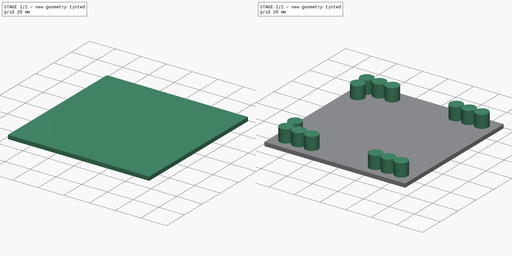
[diagram: build sequence overview — one tinted view per stage of 2, left to right]
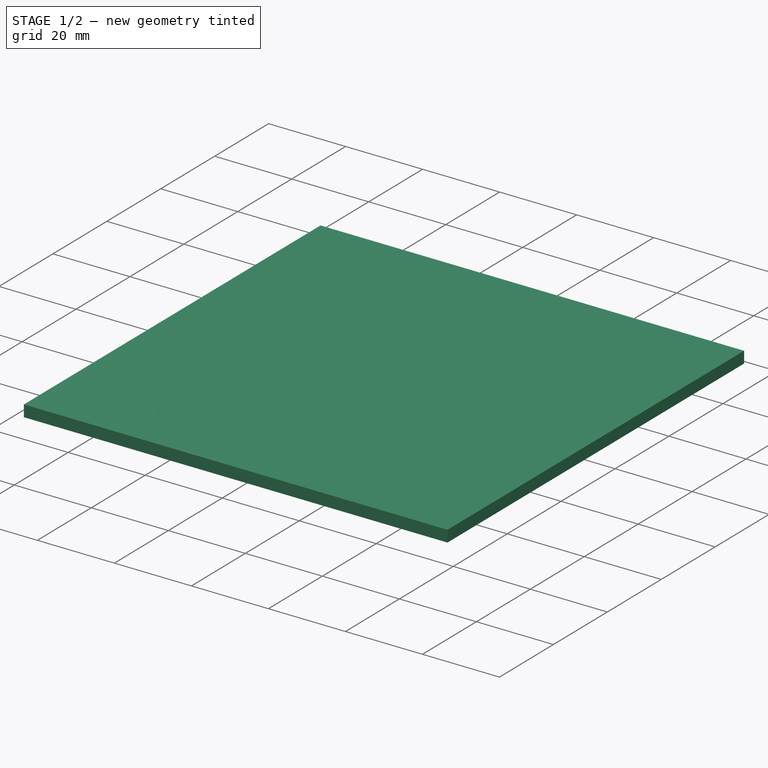
[diagram: stage 1 of 2 — iso view after this stage's code; geometry added in this stage tinted green]
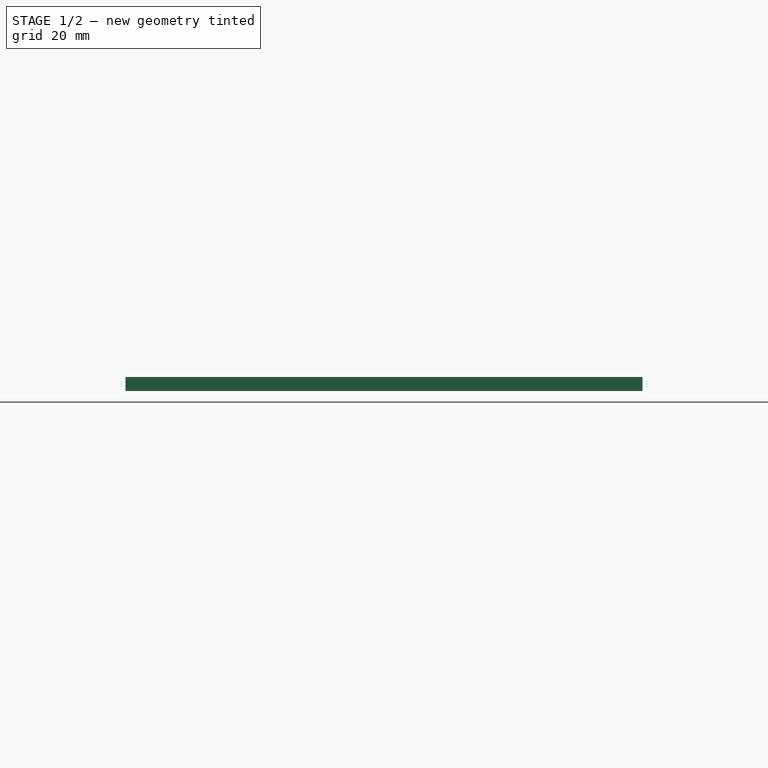
[diagram: stage 1 of 2 — front view after this stage's code; geometry added in this stage tinted green]
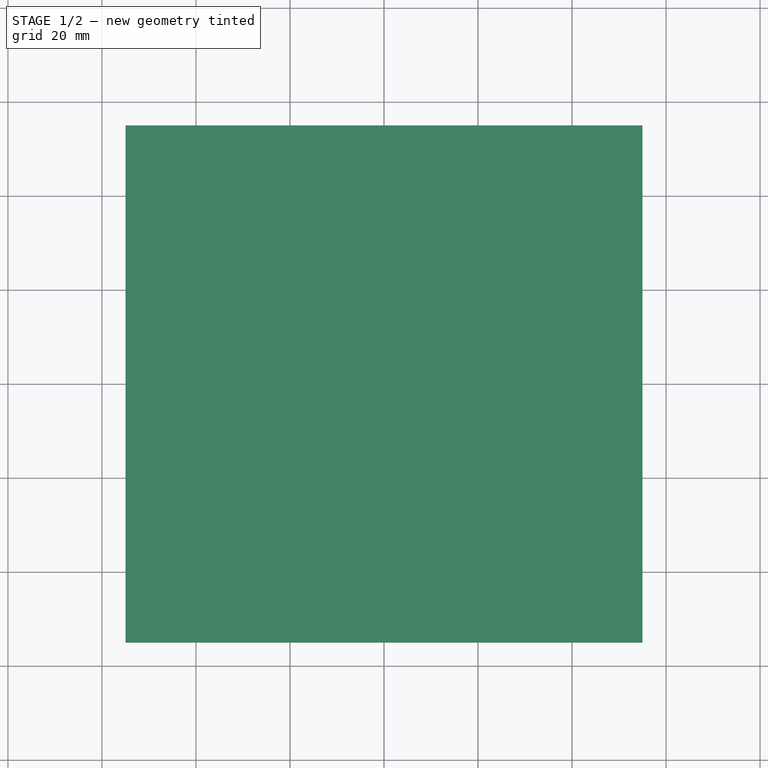
[diagram: stage 1 of 2 — top view after this stage's code; geometry added in this stage tinted green]
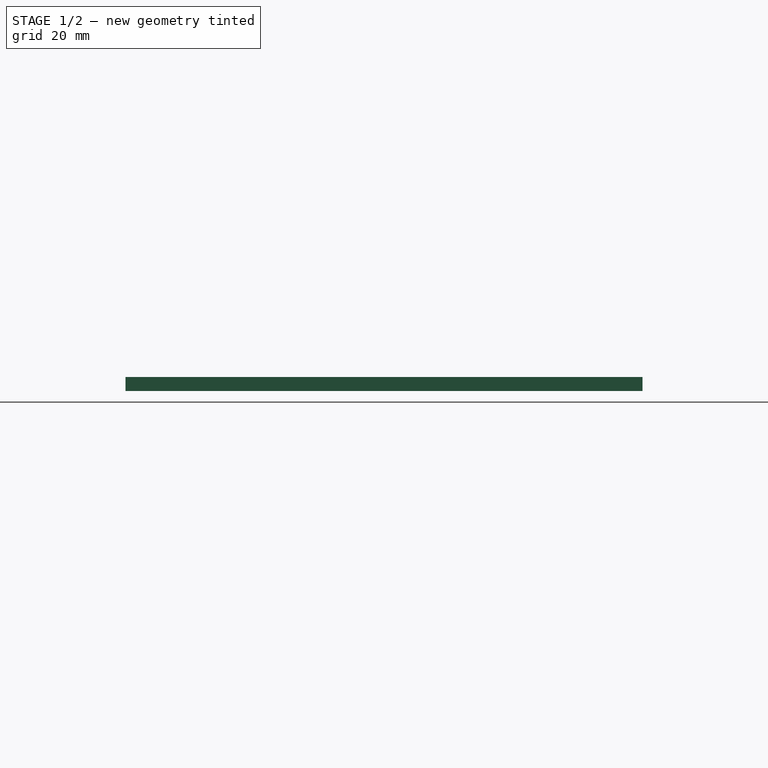
[diagram: stage 1 of 2 — right view after this stage's code; geometry added in this stage tinted green]
FCSTD DOCUMENT  (FreeCAD 1.0R39104 (Git))
Label: Case_1
License: All rights reserved
LicenseURL: https://en.wikipedia.org/wiki/All_rights_reserved
objects: Sketcher::SketchObject×3, PartDesign::Pad×2, PartDesign::Body×1
note: 13 computed .brp shape members not serialized (recipe doc carries the construction recipe); baked Part::Feature solids carry a one-line shape summary decoded from their .brp

FEATURE [Sketcher::SketchObject] Sketch
  ArcFitTolerance = 1e-06
  AttachmentSupport = -> [XY_Plane]
  FullyConstrained = true
  MakeInternals = false
  MapMode = 5
  sketch-geometry (5):
    g0: LineSegment StartX=-55 StartY=55 StartZ=0 EndX=-55 EndY=-55 EndZ=0
    g1: LineSegment StartX=-55 StartY=-55 StartZ=0 EndX=55 EndY=-55 EndZ=0
    g2: LineSegment StartX=55 StartY=-55 StartZ=0 EndX=55 EndY=55 EndZ=0
    g3: LineSegment StartX=55 StartY=55 StartZ=0 EndX=-55 EndY=55 EndZ=0
    g4: GeomPoint [constr] X=0 Y=0 Z=0
  constraints (12):
    c: Coincident(g0,g1)
    c: Coincident(g1,g2)
    c: Coincident(g2,g3)
    c: Coincident(g3,g0)
    c: Vertical(g0)
    c: Vertical(g2)
    c: Horizontal(g1)
    c: Horizontal(g3)
    c: Symmetric(g2,g0,g4)
    c: Coincident(g4,g-1)
    c: DistanceX(g3,g3) = 110
    c: DistanceY(g0,g0) = 110
FEATURE [PartDesign::Pad] Pad
  Direction = (0,0,1)
  Length = 3
  Length2 = 10
  Profile = -> Sketch
  ReferenceAxis = -> Sketch [N_Axis]
  Refine = true
  Suppressed = false
  Type = 0
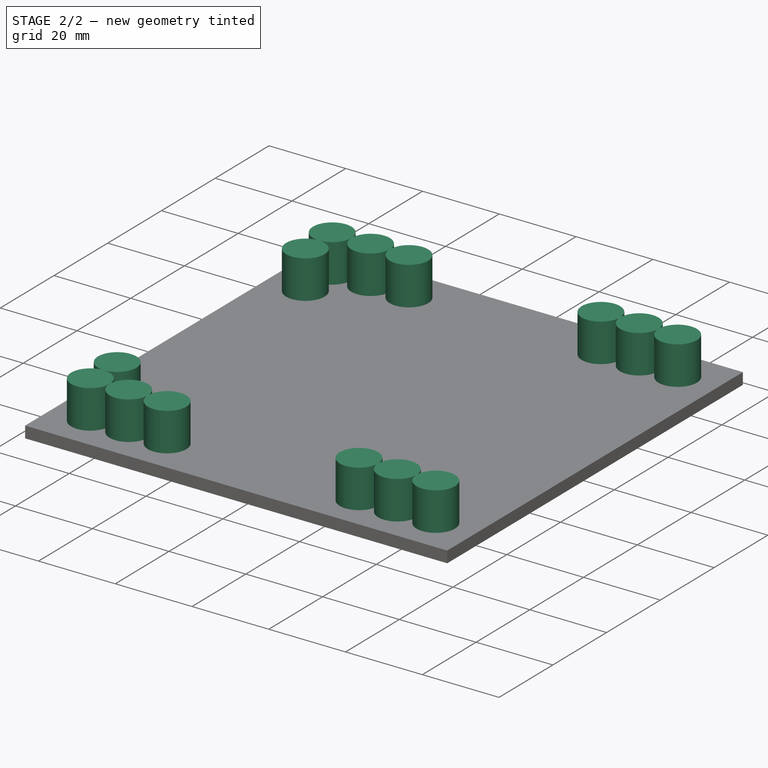
[diagram: stage 2 of 2 — iso view after this stage's code; geometry added in this stage tinted green]
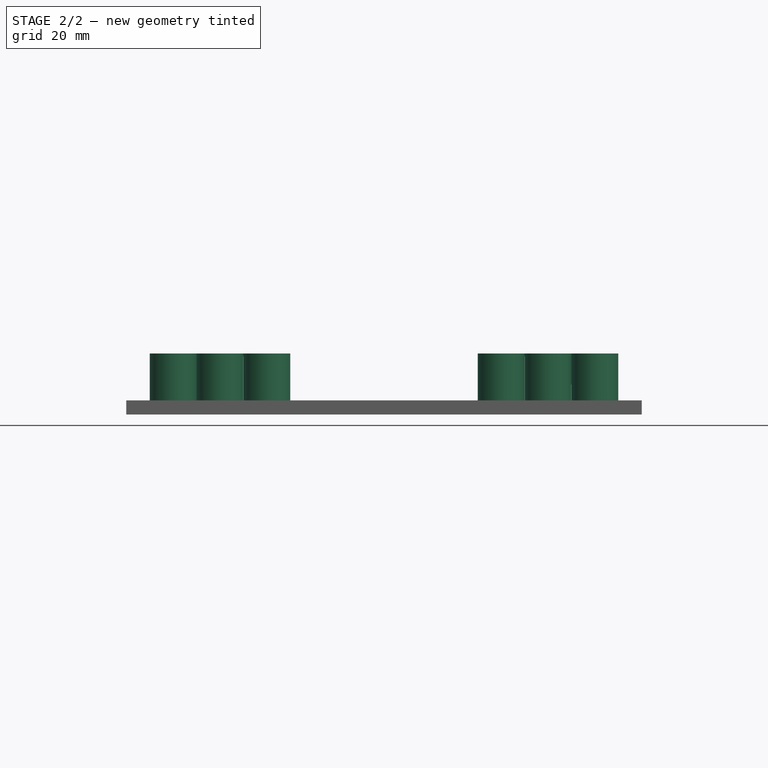
[diagram: stage 2 of 2 — front view after this stage's code; geometry added in this stage tinted green]
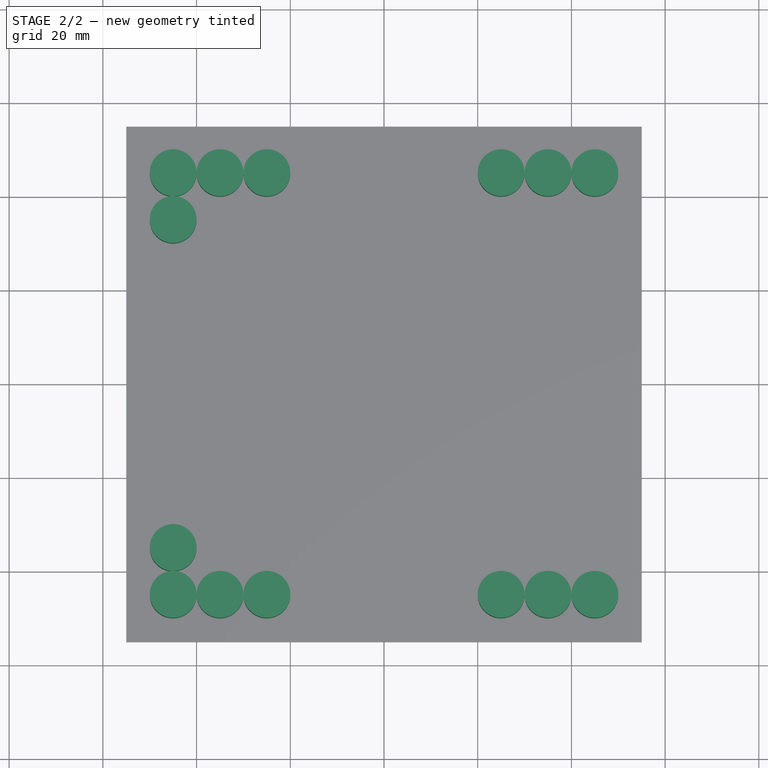
[diagram: stage 2 of 2 — top view after this stage's code; geometry added in this stage tinted green]
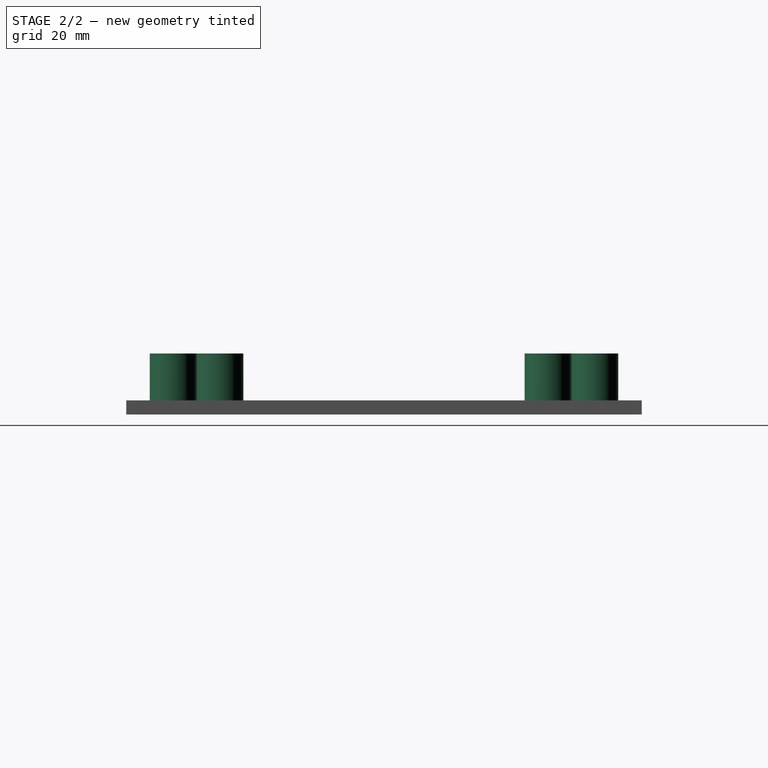
[diagram: stage 2 of 2 — right view after this stage's code; geometry added in this stage tinted green]
FEATURE [Sketcher::SketchObject] Sketch001
  ArcFitTolerance = 1e-06
  AttachmentSupport = -> [Pad]
  FullyConstrained = true
  MakeInternals = false
  MapMode = 5
  Placement = pos=(0,0,3) rot=(0,0,1;0rad)
  sketch-geometry (17):
    g0: Circle CenterX=-45 CenterY=45 CenterZ=0 NormalX=0 NormalY=0 NormalZ=1 AngleXU=0 Radius=5
    g1: Circle CenterX=45 CenterY=45 CenterZ=0 NormalX=0 NormalY=0 NormalZ=1 AngleXU=0 Radius=5
    g2: Circle CenterX=45 CenterY=-45 CenterZ=0 NormalX=0 NormalY=0 NormalZ=1 AngleXU=0 Radius=5
    g3: Circle CenterX=-45 CenterY=-45 CenterZ=0 NormalX=0 NormalY=0 NormalZ=1 AngleXU=0 Radius=5
    g4: LineSegment StartX=-45 StartY=45 StartZ=0 EndX=45 EndY=45 EndZ=0
    g5: Circle CenterX=-35 CenterY=45 CenterZ=0 NormalX=0 NormalY=0 NormalZ=1 AngleXU=0 Radius=5
    g6: Circle CenterX=-25 CenterY=45 CenterZ=0 NormalX=0 NormalY=0 NormalZ=1 AngleXU=0 Radius=5
    g7: Circle CenterX=-45 CenterY=35 CenterZ=0 NormalX=0 NormalY=0 NormalZ=1 AngleXU=0 Radius=5
    g8: Circle CenterX=35 CenterY=45 CenterZ=0 NormalX=0 NormalY=0 NormalZ=1 AngleXU=0 Radius=5
    g9: Circle CenterX=25 CenterY=45 CenterZ=0 NormalX=0 NormalY=0 NormalZ=1 AngleXU=0 Radius=5
    g10: LineSegment StartX=-45 StartY=-45 StartZ=0 EndX=45 EndY=-45 EndZ=0
    g11: LineSegment StartX=-45 StartY=45 StartZ=0 EndX=-45 EndY=-45 EndZ=0
    g12: Circle CenterX=-45 CenterY=-35 CenterZ=0 NormalX=0 NormalY=0 NormalZ=1 AngleXU=0 Radius=5
    g13: Circle CenterX=-35 CenterY=-45 CenterZ=0 NormalX=0 NormalY=0 NormalZ=1 AngleXU=0 Radius=5
    g14: Circle CenterX=-25 CenterY=-45 CenterZ=0 NormalX=0 NormalY=0 NormalZ=1 AngleXU=0 Radius=5
    g15: Circle CenterX=35 CenterY=-45 CenterZ=0 NormalX=0 NormalY=0 NormalZ=1 AngleXU=0 Radius=5
    g16: Circle CenterX=25 CenterY=-45 CenterZ=0 NormalX=0 NormalY=0 NormalZ=1 AngleXU=0 Radius=5
  constraints (48):
    c: Distance(g0,g-2) = 45
    c: Distance(g0,g-1) = 45
    c: Diameter(g0) = 10
    c: Diameter(g1) = 10
    c: Diameter(g3) = 10
    c: Diameter(g2) = 10
    c: Distance(g3,g-2) = 45
    c: Distance(g3,g-1) = 45
    c: Distance(g2,g-1) = 45
    c: Distance(g2,g-2) = 45
    c: Distance(g1,g-1) = 45
    c: Distance(g1,g-2) = 45
    c: Coincident(g4,g0)
    c: Coincident(g4,g1)
    c: PointOnObject(g5,g4)
    c: Diameter(g5) = 10
    c: DistanceX(g0,g5) = 10
    c: Diameter(g6) = 10
    c: PointOnObject(g6,g4)
    c: DistanceX(g5,g6) = 10
    c: Distance(g7,g-2) = 45
    c: Diameter(g7) = 10
    c: DistanceY(g7,g0) = 10
    c: Diameter(g8) = 10
    c: PointOnObject(g8,g4)
    c: Diameter(g9) = 10
    c: PointOnObject(g9,g4)
    c: DistanceX(g8,g1) = 10
    c: DistanceX(g9,g8) = 10
    c: Coincident(g10,g3)
    c: Coincident(g10,g2)
    c: Coincident(g11,g0)
    c: Coincident(g11,g3)
    c: PointOnObject(g12,g11)
    c: Diameter(g12) = 10
    c: Distance(g12,g10) = 10
    c: PointOnObject(g13,g10)
    c: PointOnObject(g14,g10)
    c: Diameter(g13) = 10
    c: Diameter(g14) = 10
    c: DistanceX(g3,g13) = 10
    c: DistanceX(g13,g14) = 10
    c: PointOnObject(g15,g10)
    c: Diameter(g15) = 10
    c: PointOnObject(g16,g10)
    c: Diameter(g16) = 10
    c: DistanceX(g15,g2) = 10
    c: DistanceX(g16,g15) = 10
FEATURE [PartDesign::Pad] Pad001
  BaseFeature = -> Pad
  Direction = (0,0,1)
  Length = 10
  Length2 = 10
  Profile = -> Sketch001 [Edge4,Edge13,Edge14,Edge15,Edge17,Edge16,Edge3,Edge2,Edge11,Edge12,Edge9,Edge8,Edge1,Vertex11,Edge10]
  ReferenceAxis = -> Sketch001 [N_Axis]
  Refine = true
  Suppressed = false
  Type = 0
FEATURE [Sketcher::SketchObject] Sketch002
  ArcFitTolerance = 1e-06
  AttachmentSupport = -> [Pad001]
  ExternalGeometry = -> [Pad001]
  FullyConstrained = true
  MakeInternals = false
  MapMode = 5
  Placement = pos=(0,0,13) rot=(0,0,1;0rad)
  sketch-geometry (14):
    g0: GeomPoint X=45 Y=-45 Z=0
    g1: GeomPoint X=35 Y=-45 Z=0
    g2: GeomPoint X=25 Y=-45 Z=0
    g3: GeomPoint X=-25 Y=-45 Z=0
    g4: GeomPoint X=-35 Y=-45 Z=0
    g5: GeomPoint X=-45 Y=-45 Z=0
    g6: GeomPoint X=-45 Y=-35 Z=0
    g7: GeomPoint X=-45 Y=35 Z=0
    g8: GeomPoint X=-45 Y=45 Z=0
    g9: GeomPoint X=-35 Y=45 Z=0
    g10: GeomPoint X=-25 Y=45 Z=0
    g11: GeomPoint X=25 Y=45 Z=0
    g12: GeomPoint X=35 Y=45 Z=0
    g13: GeomPoint X=45 Y=45 Z=0
  constraints (14):
    c: Coincident(g0,g-19)
    c: Coincident(g1,g-18)
    c: Coincident(g2,g-17)
    c: Coincident(g3,g-21)
    c: Coincident(g4,g-23)
    c: Coincident(g5,g-25)
    c: Coincident(g6,g-27)
    c: Coincident(g7,g-9)
    c: Coincident(g8,g-3)
    c: Coincident(g9,g-7)
    c: Coincident(g10,g-6)
    c: Coincident(g11,g-10)
    c: Coincident(g12,g-13)
    c: Coincident(g13,g-14)
FEATURE [PartDesign::Body] Body
  AllowCompound = false
  Group = -> [Sketch,Pad,Sketch001,Pad001,Sketch002]
  Origin = -> Origin
  Tip = -> Pad001
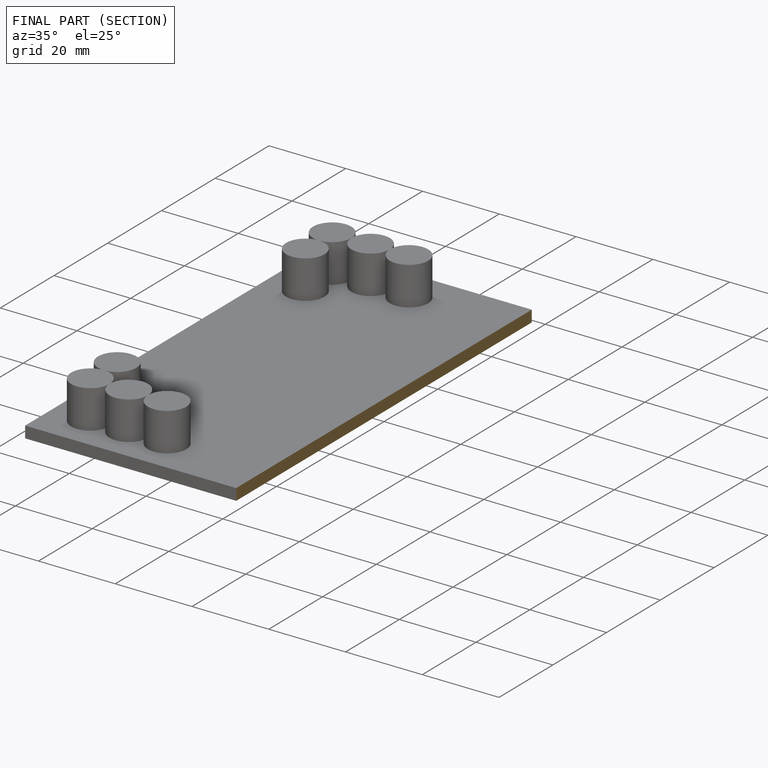
[diagram: finished part — half-section view (interior)]
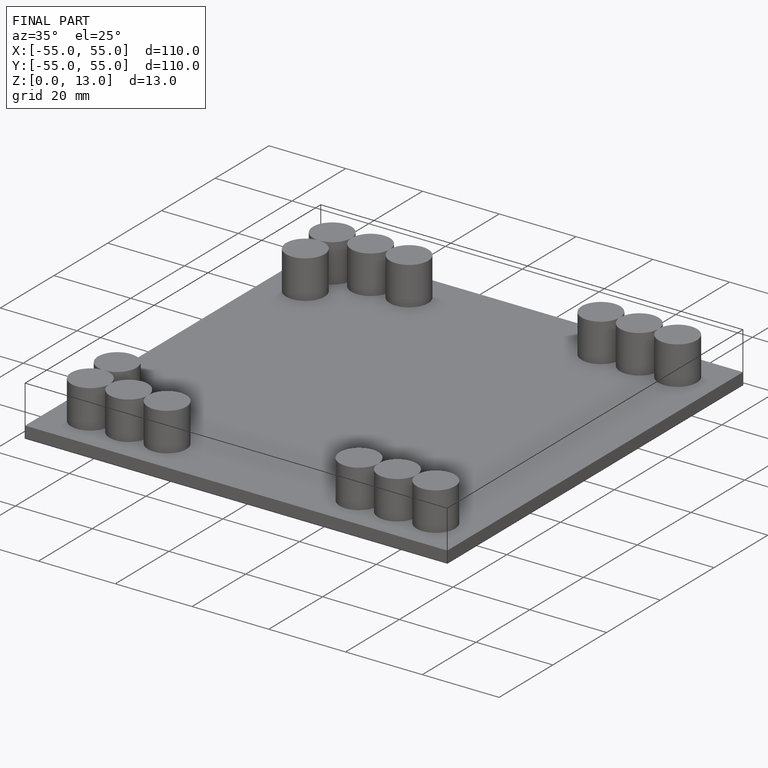
[diagram: finished part — iso view with bounding-box wireframe]
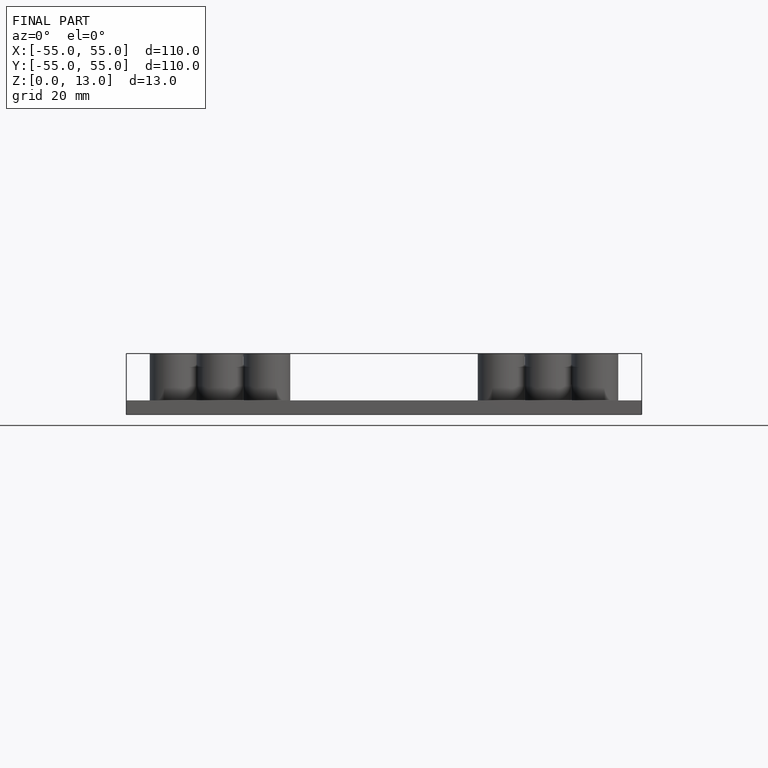
[diagram: finished part — front view with bounding-box wireframe]
